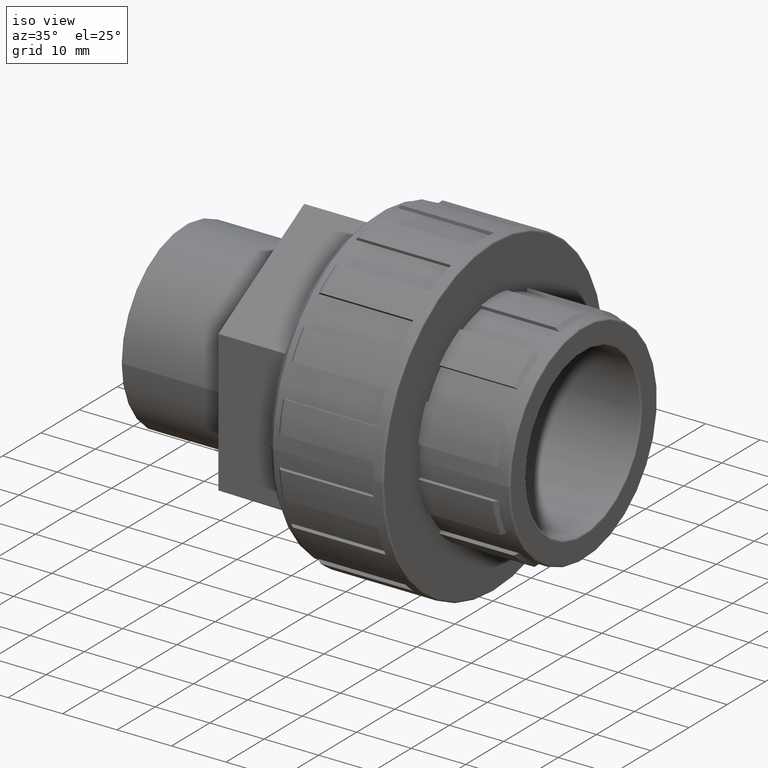
[diagram: clean part render]
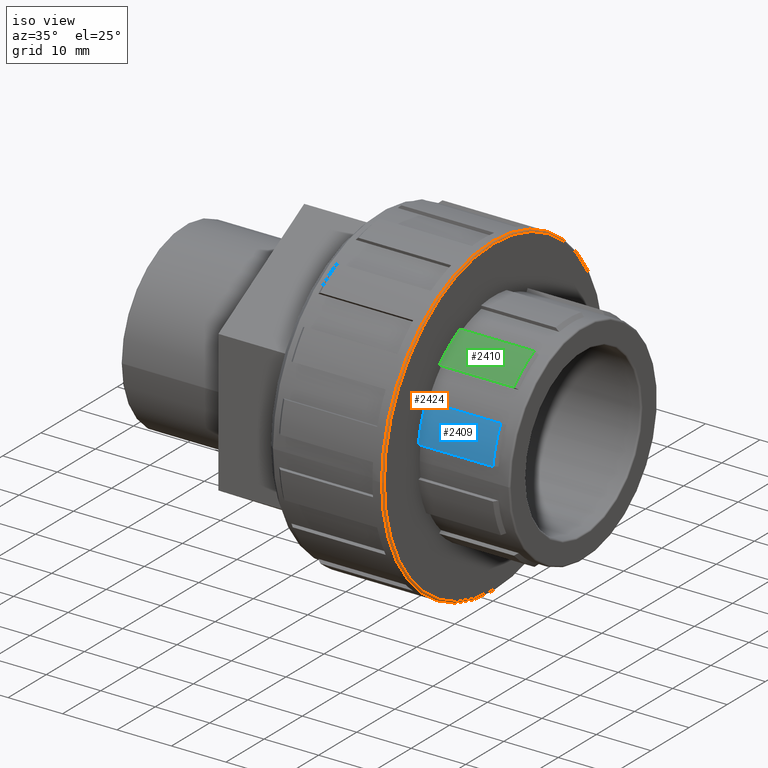
[diagram: same view with three faces highlighted in distinct colors, each labeled with its STEP entity id]
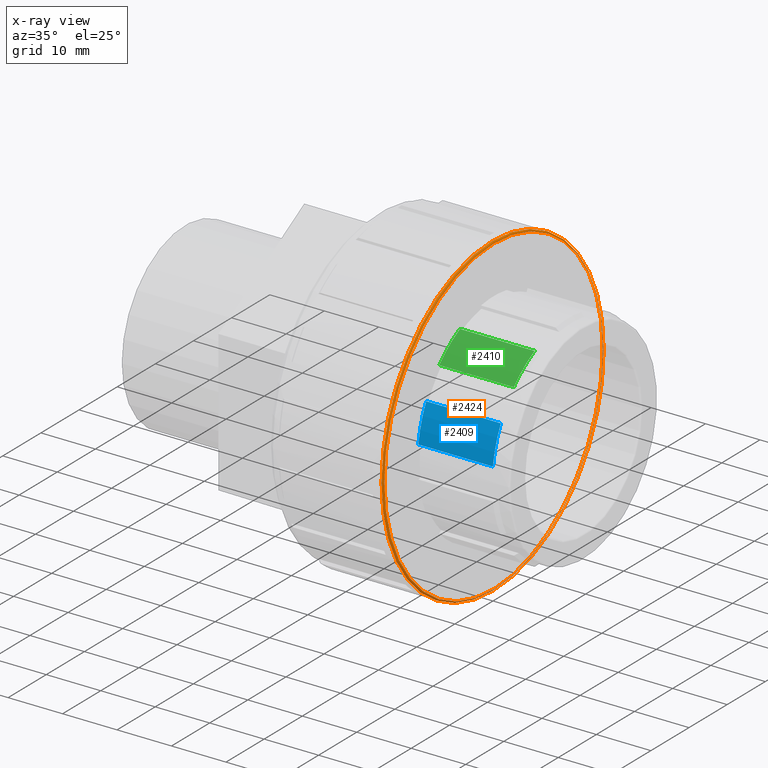
[diagram: x-ray of the same camera — body ghosted, the three highlighted faces saturated]
A machine part, iso view with three faces highlighted in distinct colors.
The next image is the same camera in x-ray (body ghosted, the three faces saturated) — at least one of them is partly hidden behind the body in this view.
Their STEP definitions:

[orange] entity #2424 — the highlighted toroidal blend (fillet) surface has major radius 28.6971 mm and minor (blend) radius 0.3029 mm.
#15=TOROIDAL_SURFACE('',#2652,28.69709,0.30291);
#48=FACE_BOUND('',#452,.T.);
#134=CIRCLE('',#2549,29.);
#181=CIRCLE('',#2653,28.69709);
#318=FACE_OUTER_BOUND('',#451,.T.);
#451=EDGE_LOOP('',(#2029));
#452=EDGE_LOOP('',(#2030));
#1084=VERTEX_POINT('',#3819);
#1167=VERTEX_POINT('',#4088);
#1374=EDGE_CURVE('',#1084,#1084,#134,.T.);
#1503=EDGE_CURVE('',#1167,#1167,#181,.T.);
#2029=ORIENTED_EDGE('',*,*,#1503,.T.);
#2030=ORIENTED_EDGE('',*,*,#1374,.T.);
#2424=ADVANCED_FACE('',(#318,#48),#15,.T.);
#2549=AXIS2_PLACEMENT_3D('',#3820,#3045,#3046);
#2652=AXIS2_PLACEMENT_3D('',#4087,#3333,#3334);
#2653=AXIS2_PLACEMENT_3D('',#4089,#3335,#3336);
#3045=DIRECTION('center_axis',(1.,1.83697019872103E-16,0.));
#3046=DIRECTION('ref_axis',(-1.84239596758916E-16,1.,6.12323399573677E-17));
#3333=DIRECTION('center_axis',(-1.,-1.83697019872103E-16,0.));
#3334=DIRECTION('ref_axis',(0.,0.,1.));
#3335=DIRECTION('center_axis',(-1.,-1.83697019872103E-16,0.));
#3336=DIRECTION('ref_axis',(-1.83697019872103E-16,1.,6.12323399573677E-17));
#3819=CARTESIAN_POINT('',(19.84709,-29.,-5.32721357629099E-15));
#3820=CARTESIAN_POINT('Origin',(19.84709,1.0378347064446E-14,0.));
#4087=CARTESIAN_POINT('Origin',(19.84709,1.0378347064446E-14,0.));
#4088=CARTESIAN_POINT('',(20.15,-28.69709,1.75718997066718E-15));
#4089=CARTESIAN_POINT('Origin',(20.15,1.04339907287354E-14,0.));

[blue] entity #2409 — the highlighted cylindrical surface (partial cylindrical patch) has radius 19.9921 mm, axis along (-1, -0, 0).
#76=CYLINDRICAL_SURFACE('',#2619,19.99206);
#163=CIRCLE('',#2620,19.99206);
#164=CIRCLE('',#2621,19.99206);
#303=FACE_OUTER_BOUND('',#436,.T.);
#436=EDGE_LOOP('',(#1969,#1970,#1971,#1972));
#671=LINE('',#3932,#897);
#673=LINE('',#3938,#899);
#897=VECTOR('',#3164,13.69418);
#899=VECTOR('',#3168,13.69418);
#1117=VERTEX_POINT('',#3926);
#1119=VERTEX_POINT('',#3930);
#1120=VERTEX_POINT('',#3934);
#1122=VERTEX_POINT('',#3937);
#1426=EDGE_CURVE('',#1117,#1119,#671,.T.);
#1428=EDGE_CURVE('',#1122,#1120,#673,.T.);
#1481=EDGE_CURVE('',#1122,#1119,#163,.T.);
#1482=EDGE_CURVE('',#1117,#1120,#164,.T.);
#1969=ORIENTED_EDGE('',*,*,#1426,.T.);
#1970=ORIENTED_EDGE('',*,*,#1481,.F.);
#1971=ORIENTED_EDGE('',*,*,#1428,.T.);
#1972=ORIENTED_EDGE('',*,*,#1482,.F.);
#2409=ADVANCED_FACE('',(#303),#76,.T.);
#2619=AXIS2_PLACEMENT_3D('',#4047,#3263,#3264);
#2620=AXIS2_PLACEMENT_3D('',#4048,#3265,#3266);
#2621=AXIS2_PLACEMENT_3D('',#4049,#3267,#3268);
#3164=DIRECTION('',(-1.,-1.83697019872103E-16,0.));
#3168=DIRECTION('',(1.,1.83697019872103E-16,0.));
#3263=DIRECTION('center_axis',(-1.,-1.83697019872103E-16,0.));
#3264=DIRECTION('ref_axis',(2.00347022399198E-16,-1.,0.));
#3265=DIRECTION('center_axis',(-1.,-1.83697019872103E-16,0.));
#3266=DIRECTION('ref_axis',(0.,0.,1.));
#3267=DIRECTION('center_axis',(1.,1.83697019872103E-16,0.));
#3268=DIRECTION('ref_axis',(2.00347022399198E-16,-1.,0.));
#3926=CARTESIAN_POINT('',(33.84418,-17.7074254711807,9.28060053154873));
#3930=CARTESIAN_POINT('',(20.15,-17.7074254711807,9.28060053154873));
#3932=CARTESIAN_POINT('',(27.3,-17.7074254711807,9.28060053154873));
#3934=CARTESIAN_POINT('',(33.84418,-19.780608257675,2.9));
#3937=CARTESIAN_POINT('',(20.15,-19.780608257675,2.9));
#3938=CARTESIAN_POINT('',(27.3,-19.780608257675,2.9));
#4047=CARTESIAN_POINT('Origin',(27.3,1.1747424420821E-14,0.));
#4048=CARTESIAN_POINT('Origin',(20.15,1.04339907287354E-14,0.));
#4049=CARTESIAN_POINT('Origin',(33.84418,1.29495707843276E-14,0.));

[green] entity #2410 — the highlighted cylindrical surface (partial cylindrical patch) has radius 19.9921 mm, axis along (-1, -0, 0).
#77=CYLINDRICAL_SURFACE('',#2622,19.99206);
#165=CIRCLE('',#2623,19.99206);
#166=CIRCLE('',#2624,19.99206);
#304=FACE_OUTER_BOUND('',#437,.T.);
#437=EDGE_LOOP('',(#1973,#1974,#1975,#1976));
#663=LINE('',#3914,#889);
#665=LINE('',#3920,#891);
#889=VECTOR('',#3152,13.69418);
#891=VECTOR('',#3156,13.69418);
#1109=VERTEX_POINT('',#3908);
#1111=VERTEX_POINT('',#3912);
#1112=VERTEX_POINT('',#3916);
#1114=VERTEX_POINT('',#3919);
#1418=EDGE_CURVE('',#1109,#1111,#663,.T.);
#1420=EDGE_CURVE('',#1114,#1112,#665,.T.);
#1483=EDGE_CURVE('',#1114,#1111,#165,.T.);
#1484=EDGE_CURVE('',#1109,#1112,#166,.T.);
#1973=ORIENTED_EDGE('',*,*,#1418,.T.);
#1974=ORIENTED_EDGE('',*,*,#1483,.F.);
#1975=ORIENTED_EDGE('',*,*,#1420,.T.);
#1976=ORIENTED_EDGE('',*,*,#1484,.F.);
#2410=ADVANCED_FACE('',(#304),#77,.T.);
#2622=AXIS2_PLACEMENT_3D('',#4050,#3269,#3270);
#2623=AXIS2_PLACEMENT_3D('',#4051,#3271,#3272);
#2624=AXIS2_PLACEMENT_3D('',#4052,#3273,#3274);
#3152=DIRECTION('',(-1.,-1.83697019872103E-16,0.));
#3156=DIRECTION('',(1.,1.83697019872103E-16,0.));
#3269=DIRECTION('center_axis',(-1.,-1.83697019872103E-16,0.));
#3270=DIRECTION('ref_axis',(2.00347022399198E-16,-1.,0.));
#3271=DIRECTION('center_axis',(-1.,-1.83697019872103E-16,0.));
#3272=DIRECTION('ref_axis',(0.,0.,1.));
#3273=DIRECTION('center_axis',(1.,1.83697019872103E-16,0.));
#3274=DIRECTION('ref_axis',(2.00347022399198E-16,-1.,0.));
#3908=CARTESIAN_POINT('',(33.84418,-8.87060800795093,17.9163270960562));
#3912=CARTESIAN_POINT('',(20.15,-8.87060800795094,17.9163270960562));
#3914=CARTESIAN_POINT('',(27.3,-8.87060800795093,17.9163270960562));
#3916=CARTESIAN_POINT('',(33.84418,-14.2982710078843,13.9728990989234));
#3919=CARTESIAN_POINT('',(20.15,-14.2982710078843,13.9728990989234));
#3920=CARTESIAN_POINT('',(27.3,-14.2982710078843,13.9728990989234));
#4050=CARTESIAN_POINT('Origin',(27.3,1.1747424420821E-14,0.));
#4051=CARTESIAN_POINT('Origin',(20.15,1.04339907287354E-14,0.));
#4052=CARTESIAN_POINT('Origin',(33.84418,1.29495707843276E-14,0.));